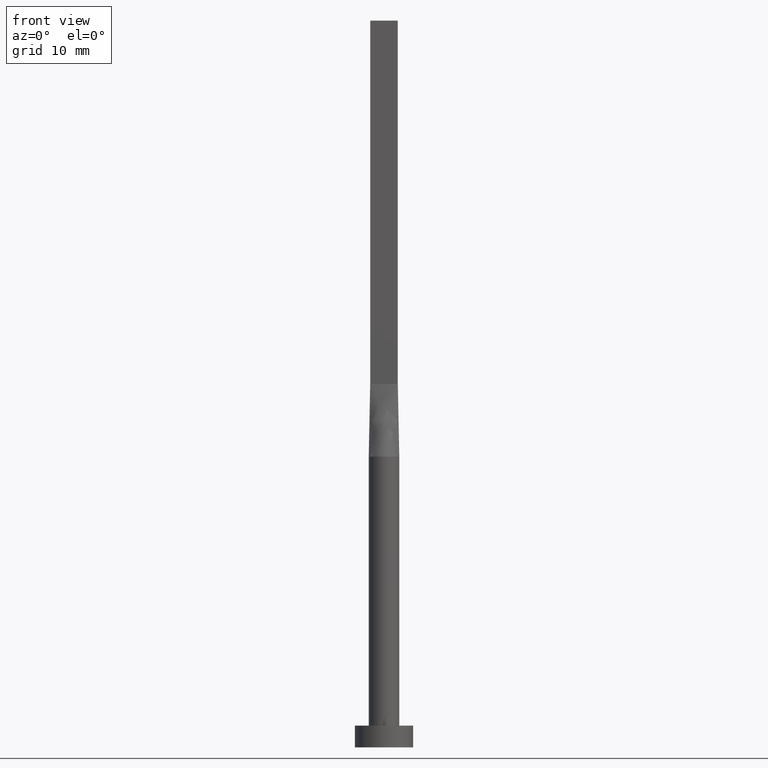
[diagram: clean part render]
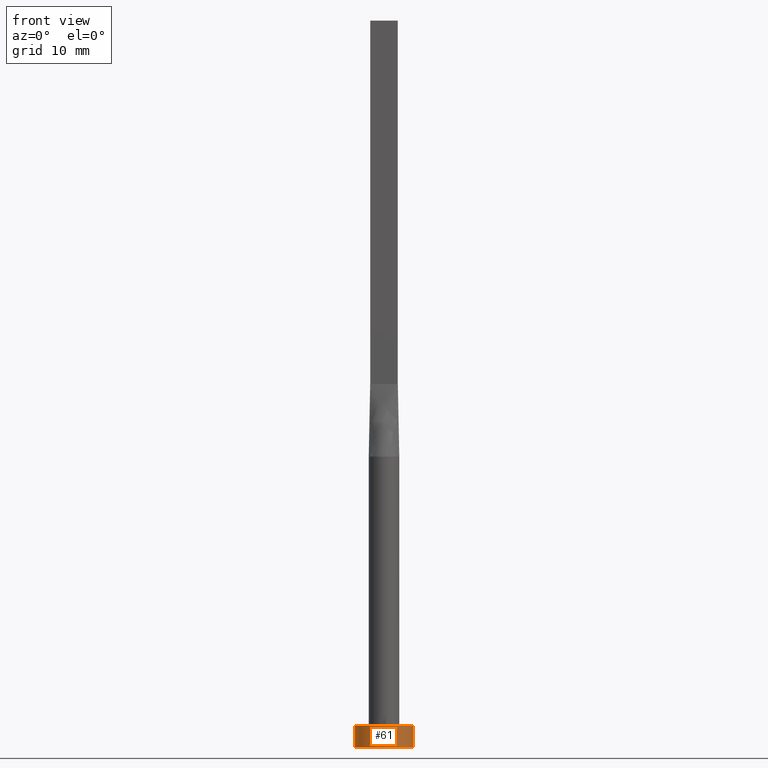
[diagram: same view with one face highlighted and labeled with its STEP entity id]
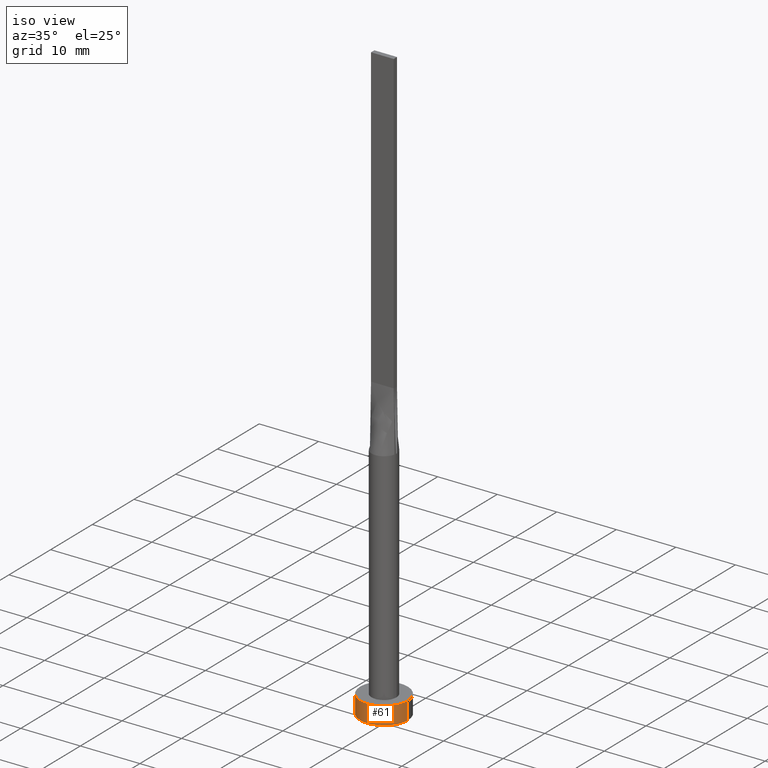
[diagram: same view with one face highlighted and labeled with its STEP entity id]
A machine part, front view. The second image highlights one B-rep face of the part: STEP entity #61.
A second angle (iso view) of the same face is appended — the face is thin or edge-on in the first view.
In plain terms, the highlighted cylindrical surface (edge-blend (fillet) strip) has radius 4 mm, axis along (-0, -0, -1).
Its self-contained STEP definition (entity closure, byte-faithful):
#24 = LINE ( 'NONE', #72, #562 ) ;
#61 = ADVANCED_FACE ( 'NONE', ( #483 ), #95, .T. ) ;
#72 = CARTESIAN_POINT ( 'NONE',  ( 4.000000000000000000, 4.898587196589412829E-16, 3.000000000000000000 ) ) ;
#82 = VERTEX_POINT ( 'NONE', #441 ) ;
#95 = CYLINDRICAL_SURFACE ( 'NONE', #116, 4.000000000000000000 ) ;
#103 = ORIENTED_EDGE ( 'NONE', *, *, #285, .T. ) ;
#116 = AXIS2_PLACEMENT_3D ( 'NONE', #396, #149, #535 ) ;
#126 = EDGE_CURVE ( 'NONE', #567, #82, #521, .T. ) ;
#139 = DIRECTION ( 'NONE',  ( 1.000000000000000000, 0.000000000000000000, 0.000000000000000000 ) ) ;
#140 = VERTEX_POINT ( 'NONE', #494 ) ;
#149 = DIRECTION ( 'NONE',  ( -0.000000000000000000, -0.000000000000000000, -1.000000000000000000 ) ) ;
#156 = DIRECTION ( 'NONE',  ( -0.000000000000000000, -0.000000000000000000, -1.000000000000000000 ) ) ;
#166 = CARTESIAN_POINT ( 'NONE',  ( -4.000000000000000000, 0.000000000000000000, 3.000000000000000000 ) ) ;
#167 = DIRECTION ( 'NONE',  ( -0.000000000000000000, -0.000000000000000000, -1.000000000000000000 ) ) ;
#186 = ORIENTED_EDGE ( 'NONE', *, *, #354, .F. ) ;
#230 = EDGE_CURVE ( 'NONE', #140, #282, #472, .T. ) ;
#244 = LINE ( 'NONE', #166, #368 ) ;
#267 = ORIENTED_EDGE ( 'NONE', *, *, #126, .T. ) ;
#277 = CARTESIAN_POINT ( 'NONE',  ( 0.000000000000000000, 0.000000000000000000, 0.000000000000000000 ) ) ;
#282 = VERTEX_POINT ( 'NONE', #286 ) ;
#285 = EDGE_CURVE ( 'NONE', #140, #567, #244, .T. ) ;
#286 = CARTESIAN_POINT ( 'NONE',  ( 4.000000000000000000, 4.898587196589412829E-16, 3.000000000000000000 ) ) ;
#287 = DIRECTION ( 'NONE',  ( 0.000000000000000000, 0.000000000000000000, 1.000000000000000000 ) ) ;
#288 = AXIS2_PLACEMENT_3D ( 'NONE', #455, #287, #383 ) ;
#354 = EDGE_CURVE ( 'NONE', #282, #82, #24, .T. ) ;
#368 = VECTOR ( 'NONE', #167, 1000.000000000000000 ) ;
#383 = DIRECTION ( 'NONE',  ( 1.000000000000000000, 0.000000000000000000, 0.000000000000000000 ) ) ;
#396 = CARTESIAN_POINT ( 'NONE',  ( 0.000000000000000000, 0.000000000000000000, 3.000000000000000000 ) ) ;
#407 = DIRECTION ( 'NONE',  ( 0.000000000000000000, 0.000000000000000000, 1.000000000000000000 ) ) ;
#429 = AXIS2_PLACEMENT_3D ( 'NONE', #277, #407, #139 ) ;
#441 = CARTESIAN_POINT ( 'NONE',  ( 4.000000000000000000, 4.898587196589412829E-16, 0.000000000000000000 ) ) ;
#455 = CARTESIAN_POINT ( 'NONE',  ( 0.000000000000000000, 0.000000000000000000, 3.000000000000000000 ) ) ;
#472 = CIRCLE ( 'NONE', #288, 4.000000000000000000 ) ;
#483 = FACE_OUTER_BOUND ( 'NONE', #517, .T. ) ;
#494 = CARTESIAN_POINT ( 'NONE',  ( -4.000000000000000000, 0.000000000000000000, 3.000000000000000000 ) ) ;
#517 = EDGE_LOOP ( 'NONE', ( #186, #569, #103, #267 ) ) ;
#521 = CIRCLE ( 'NONE', #429, 4.000000000000000000 ) ;
#535 = DIRECTION ( 'NONE',  ( -1.000000000000000000, 0.000000000000000000, 0.000000000000000000 ) ) ;
#562 = VECTOR ( 'NONE', #156, 1000.000000000000000 ) ;
#567 = VERTEX_POINT ( 'NONE', #568 ) ;
#568 = CARTESIAN_POINT ( 'NONE',  ( -4.000000000000000000, 0.000000000000000000, 0.000000000000000000 ) ) ;
#569 = ORIENTED_EDGE ( 'NONE', *, *, #230, .F. ) ;